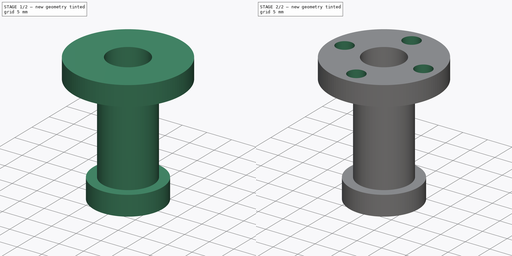
[diagram: build sequence overview — one tinted view per stage of 2, left to right]
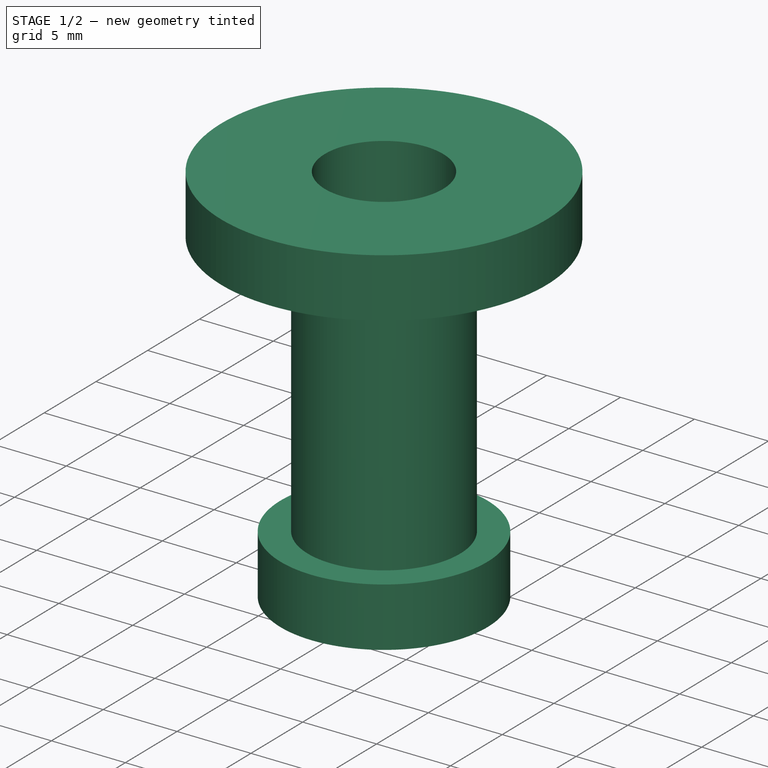
[diagram: stage 1 of 2 — iso view after this stage's code; geometry added in this stage tinted green]
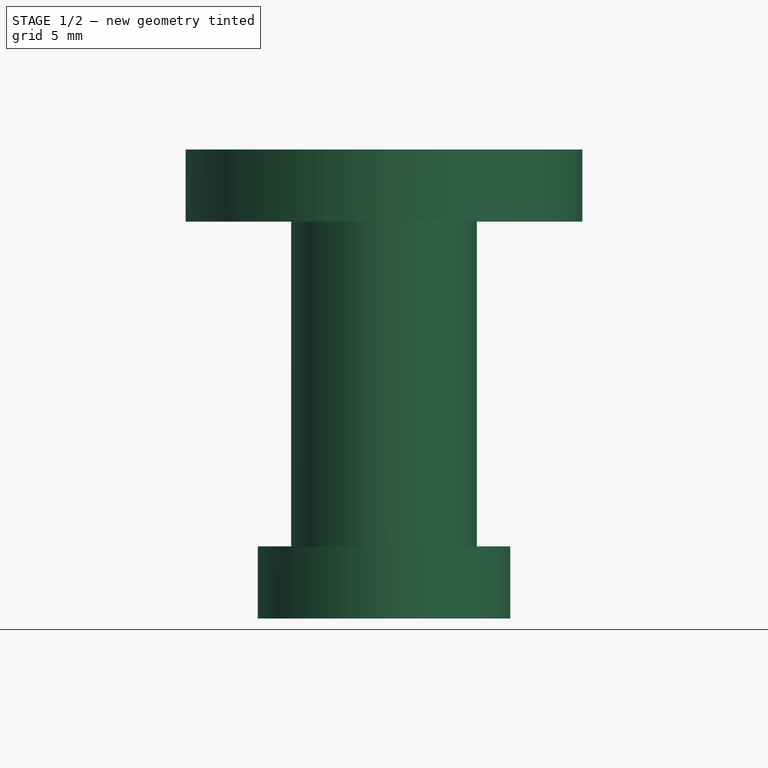
[diagram: stage 1 of 2 — front view after this stage's code; geometry added in this stage tinted green]
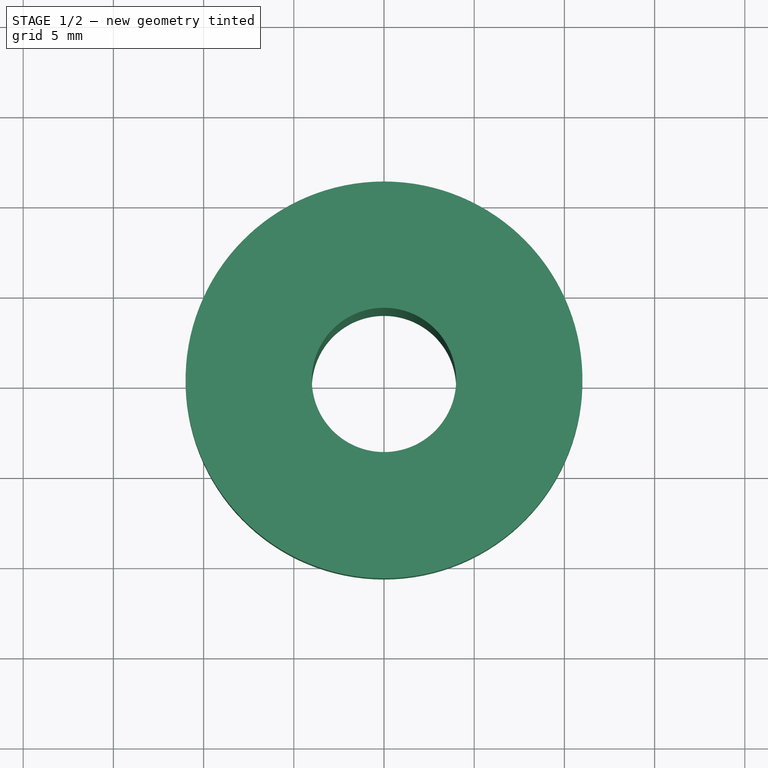
[diagram: stage 1 of 2 — top view after this stage's code; geometry added in this stage tinted green]
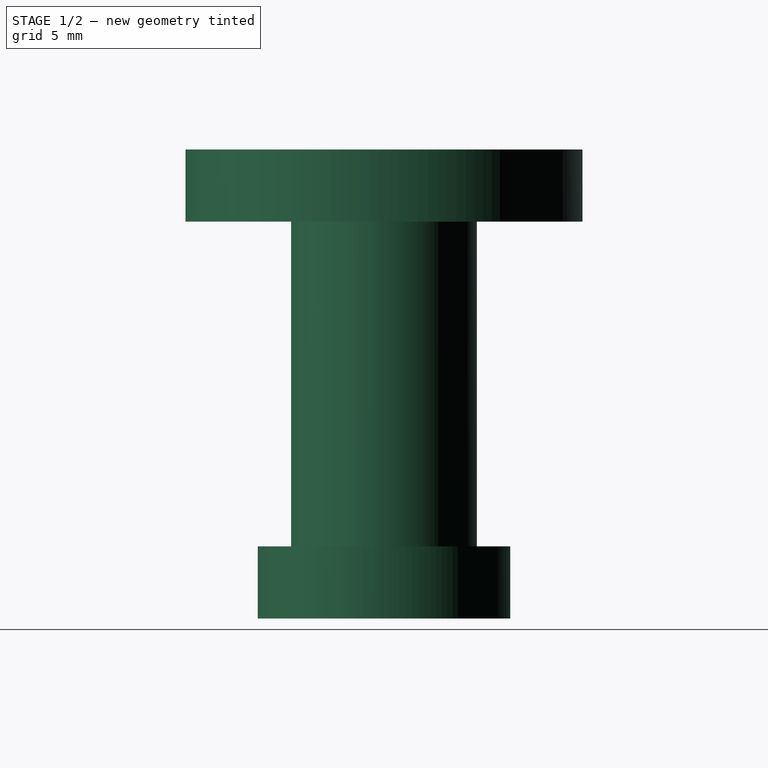
[diagram: stage 1 of 2 — right view after this stage's code; geometry added in this stage tinted green]
FCSTD DOCUMENT  (FreeCAD 0.19R)
Label: nut_lead_screw_tr8x4
License: All rights reserved
LicenseURL: http://en.wikipedia.org/wiki/All_rights_reserved
objects: Sketcher::SketchObject×3, PartDesign::CoordinateSystem×3, PartDesign::Revolution×1, PartDesign::Pocket×1, PartDesign::Hole×1, PartDesign::PolarPattern×1, PartDesign::Body×1
note: 14 computed .brp shape members not serialized (recipe doc carries the construction recipe); baked Part::Feature solids carry a one-line shape summary decoded from their .brp

FEATURE [Sketcher::SketchObject] Sketch
  FullyConstrained = true
  MapMode = 5
  Placement = pos=(0,0,0) rot=(0.57735,0.57735,0.57735;2.0944rad)
  Support = -> [YZ_Plane]
  sketch-geometry (8):
    g0: LineSegment StartX=0 StartY=0 StartZ=0 EndX=11 EndY=0 EndZ=0
    g1: LineSegment StartX=11 StartY=0 StartZ=0 EndX=11 EndY=-4 EndZ=0
    g2: LineSegment StartX=11 StartY=-4 StartZ=0 EndX=5.15 EndY=-4 EndZ=0
    g3: LineSegment StartX=5.15 StartY=-4 StartZ=0 EndX=5.15 EndY=-22 EndZ=0
    g4: LineSegment StartX=7 StartY=-26 StartZ=0 EndX=0 EndY=-26 EndZ=0
    g5: LineSegment StartX=0 StartY=-26 StartZ=0 EndX=0 EndY=0 EndZ=0
    g6: LineSegment StartX=5.15 StartY=-22 StartZ=0 EndX=7 EndY=-22 EndZ=0
    g7: LineSegment StartX=7 StartY=-22 StartZ=0 EndX=7 EndY=-26 EndZ=0
  constraints (23):
    c: Horizontal(g0)
    c: Vertical(g1)
    c: Coincident(g1,g2)
    c: Horizontal(g2)
    c: Coincident(g2,g3)
    c: Vertical(g3)
    c: PointOnObject(g4,g-2)
    c: Horizontal(g4)
    c: Coincident(g4,g5)
    c: Coincident(g5,g0)
    c: Horizontal(g6)
    c: Coincident(g7,g6)
    c: Vertical(g7)
    c: Coincident(g3,g6)
    c: Coincident(g4,g7)
    c: DistanceX(g-1,g4) = 7
    c: Coincident(g1,g0)
    c: Coincident(g-1,g0)
    c: DistanceX(g0,g0) = 11
    c: DistanceX(g0,g2) = 5.15
    c: DistanceY(g1,g1) = 4
    c: DistanceY(g5,g5) = 26
    c: DistanceY(g7,g7) = 4
FEATURE [PartDesign::Revolution] Revolution
  Angle = 360
  Axis = (-2e-16,3e-16,1)
  Base = (0,0,0)
  Placement = pos=(0,0,0) rot=(0.57735,0.57735,0.57735;2.0944rad)
  Profile = -> Sketch
  ReferenceAxis = -> Sketch [V_Axis]
  Reversed = true
FEATURE [Sketcher::SketchObject] Sketch001
  FullyConstrained = true
  MapMode = 5
  Support = -> [XY_Plane]
  sketch-geometry (1):
    g0: Circle CenterX=0 CenterY=0 CenterZ=0 NormalX=0 NormalY=0 NormalZ=1 AngleXU=0 Radius=4
  constraints (2):
    c: Coincident(g0,g-1)
    c: Diameter(g0) = 8
FEATURE [PartDesign::Pocket] Pocket
  BaseFeature = -> Revolution
  Length = 5
  Length2 = 100
  Midplane = true
  Placement = pos=(0,0,0) rot=(0.57735,0.57735,0.57735;2.0944rad)
  Profile = -> Sketch001
  Type = 1
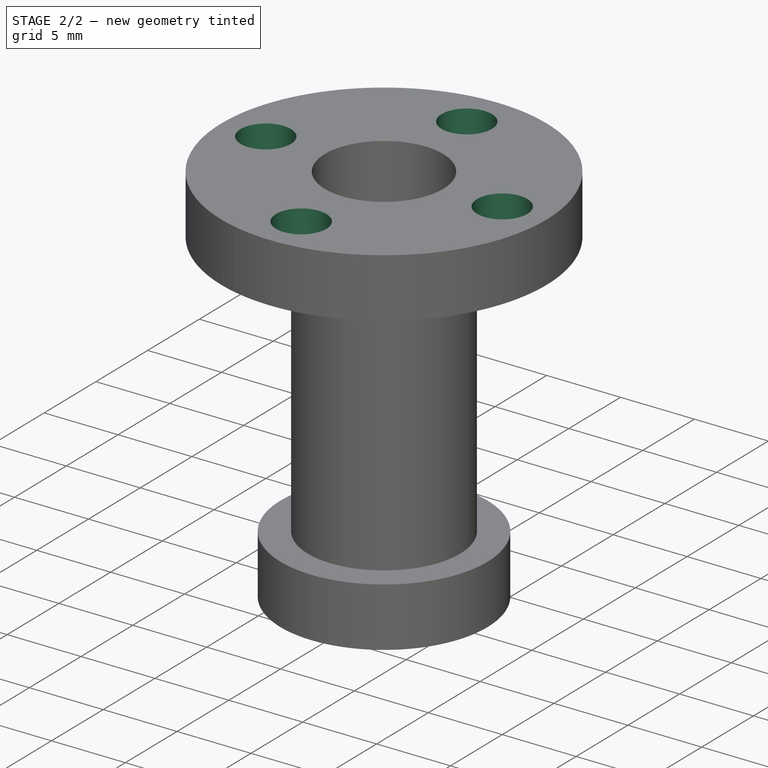
[diagram: stage 2 of 2 — iso view after this stage's code; geometry added in this stage tinted green]
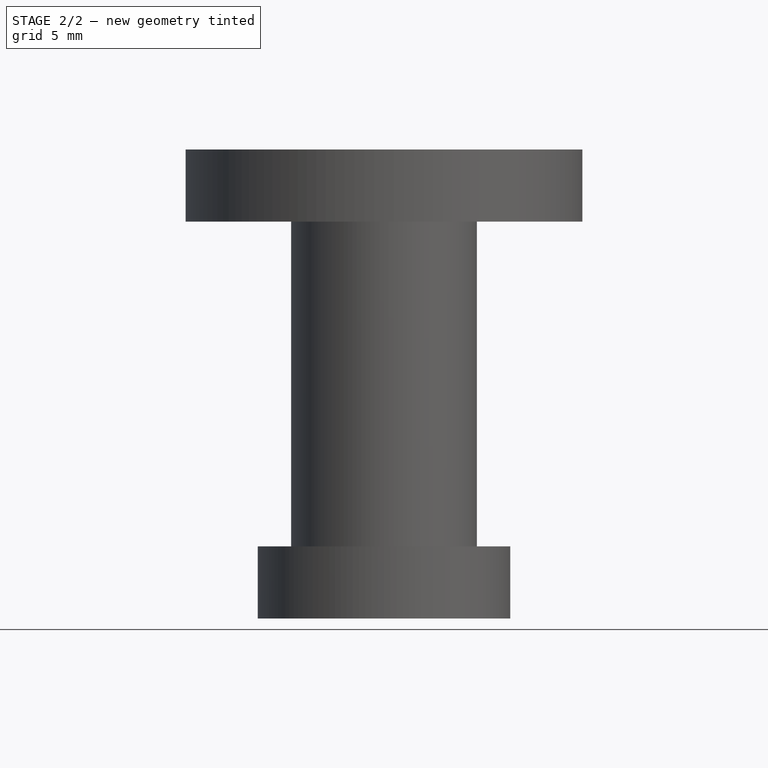
[diagram: stage 2 of 2 — front view after this stage's code; geometry added in this stage tinted green]
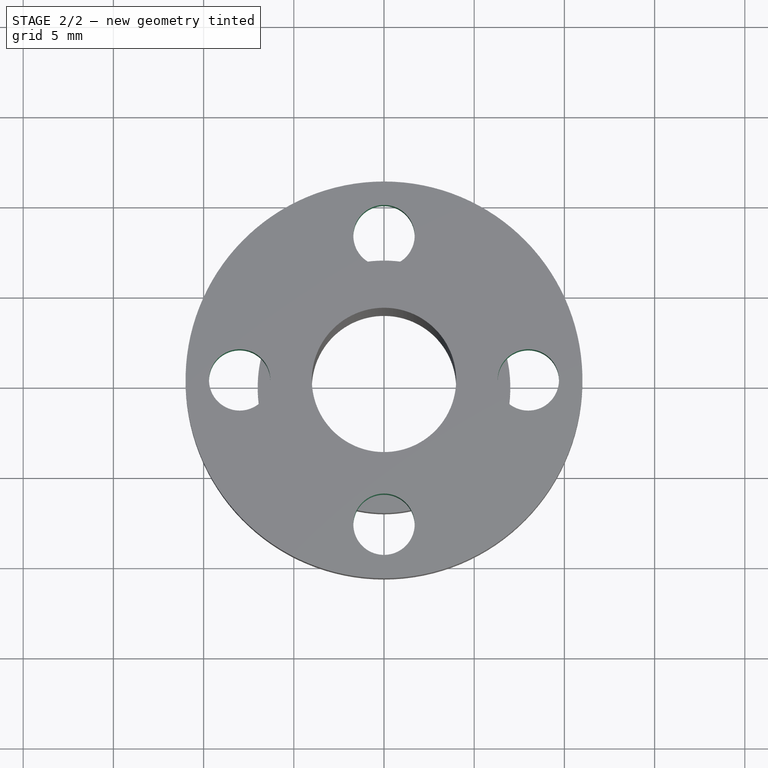
[diagram: stage 2 of 2 — top view after this stage's code; geometry added in this stage tinted green]
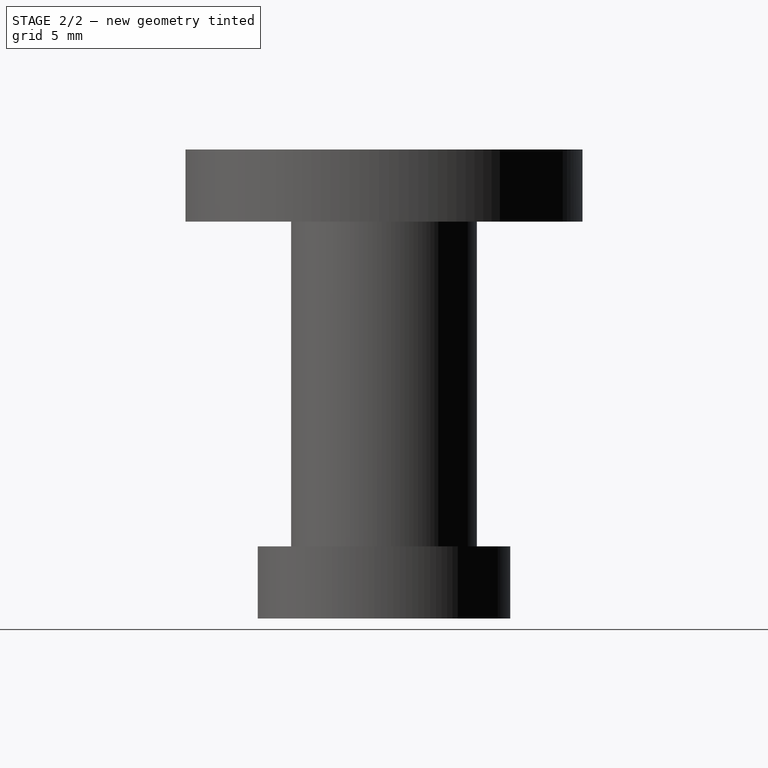
[diagram: stage 2 of 2 — right view after this stage's code; geometry added in this stage tinted green]
FEATURE [Sketcher::SketchObject] Sketch002
  FullyConstrained = true
  MapMode = 5
  Support = -> [XY_Plane]
  sketch-geometry (1):
    g0: Circle CenterX=0 CenterY=8 CenterZ=0 NormalX=0 NormalY=0 NormalZ=1 AngleXU=0 Radius=1.5
  constraints (3):
    c: Diameter(g0) = 3
    c: Vertical(g0,g-1)
    c: DistanceY(g-1,g0) = 8
FEATURE [PartDesign::Hole] Hole
  BaseFeature = -> Pocket
  Depth = 10
  DepthType = 0
  Diameter = 3.4
  DrillForDepth = false
  DrillPoint = 1
  DrillPointAngle = 118
  HoleCutCountersinkAngle = 90
  HoleCutCustomValues = false
  HoleCutDepth = 3.4
  HoleCutDiameter = 6.1
  HoleCutType = 0
  ModelActualThread = false
  Placement = pos=(0,0,0) rot=(0.57735,0.57735,0.57735;2.0944rad)
  Profile = -> Sketch002
  Tapered = false
  TaperedAngle = 90
  ThreadAngle = 60
  ThreadClass = 0
  ThreadCutOffInner = 0.0541266
  ThreadCutOffOuter = 0.108253
  ThreadDirection = 0
  ThreadFit = 0
  ThreadPitch = 0.5
  ThreadSize = 9
  ThreadType = 1
  Threaded = false
FEATURE [PartDesign::PolarPattern] PolarPattern
  Angle = 360
  Axis = -> Sketch002 [N_Axis]
  BaseFeature = -> Hole
  Occurrences = 4
  Originals = -> [Hole]
  Placement = pos=(0,0,0) rot=(0.57735,0.57735,0.57735;2.0944rad)
FEATURE [PartDesign::CoordinateSystem] Local_CS  label="lcs_screw1"
  AttacherType = Attacher::AttachEngine3D
  AttachmentOffset = pos=(0,0,0) rot=(0,0,1;3.14159rad)
  MapMode = 11
  Placement = pos=(-8,0,-2e-15) rot=(0.707107,-0.707107,0;3.14159rad)
  Support = -> [PolarPattern]
FEATURE [PartDesign::CoordinateSystem] Local_CS001  label="lcs_nut_lead_screw"
  AttacherType = Attacher::AttachEngine3D
  AttachmentOffset = pos=(0,0,0) rot=(0,0,1;0.785398rad)
  MapMode = 11
  Placement = pos=(1.8e-15,-9e-16,-4) rot=(0.92388,-0.382683,0;3.14159rad)
  Support = -> [PolarPattern]
FEATURE [PartDesign::CoordinateSystem] Local_CS002
  AttacherType = Attacher::AttachEngine3D
  AttachmentOffset = pos=(0,0,0) rot=(0,0,1;0.785398rad)
  MapMode = 11
  Placement = pos=(-8.9e-15,-9.1e-15,0) rot=(0,0,1;2.35619rad)
  Support = -> [PolarPattern]
FEATURE [PartDesign::Body] Body
  Group = -> [Sketch,Revolution,Sketch001,Pocket,Sketch002,Hole,PolarPattern,Local_CS,Local_CS001,Local_CS002]
  Origin = -> Origin
  Tip = -> PolarPattern
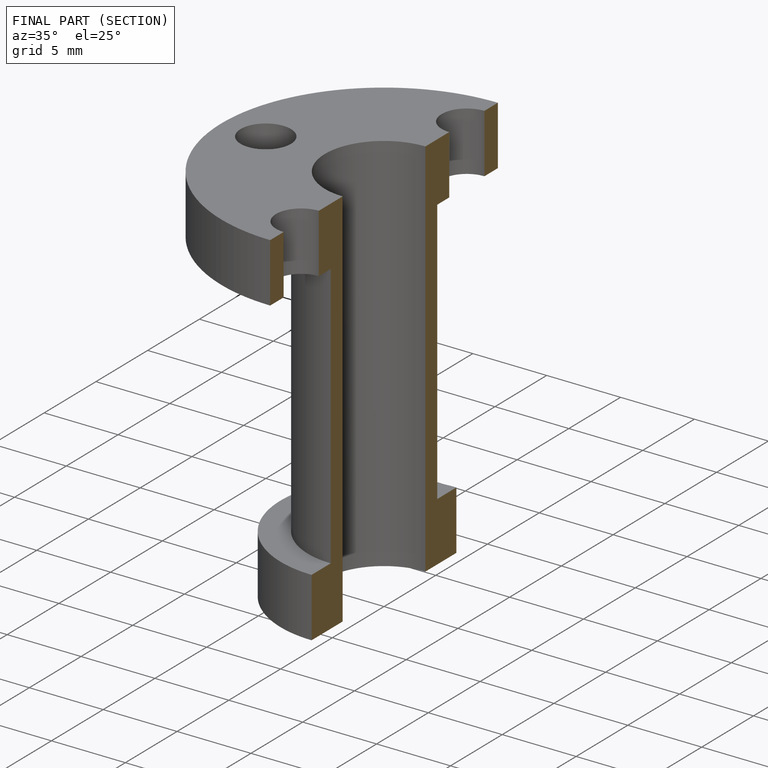
[diagram: finished part — half-section view (interior)]
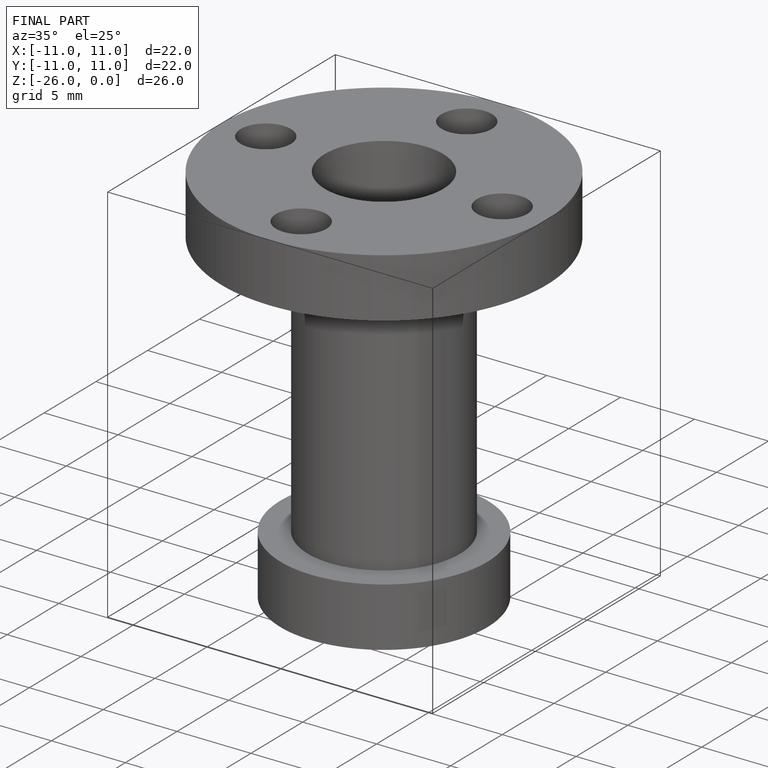
[diagram: finished part — iso view with bounding-box wireframe]
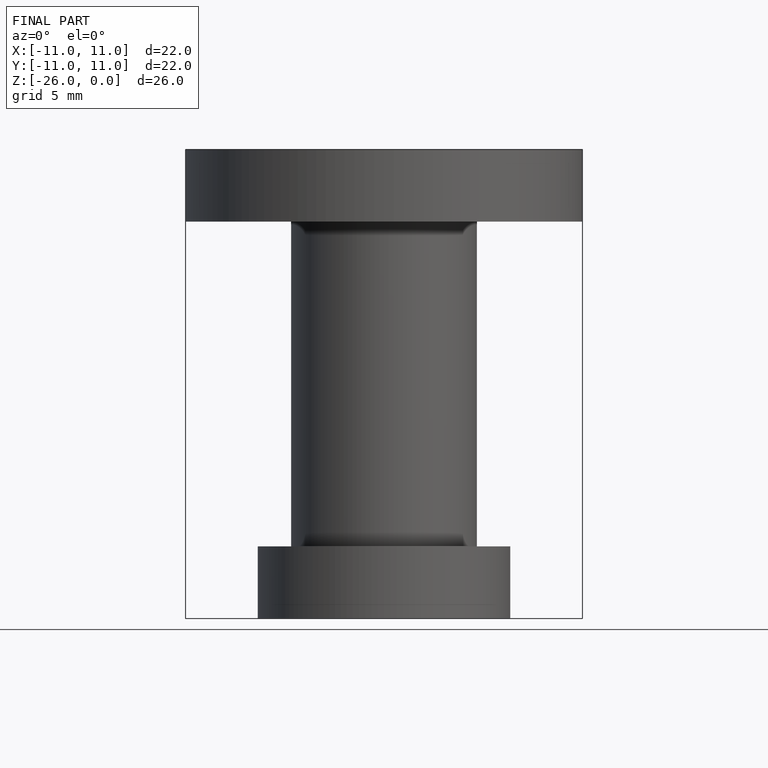
[diagram: finished part — front view with bounding-box wireframe]
